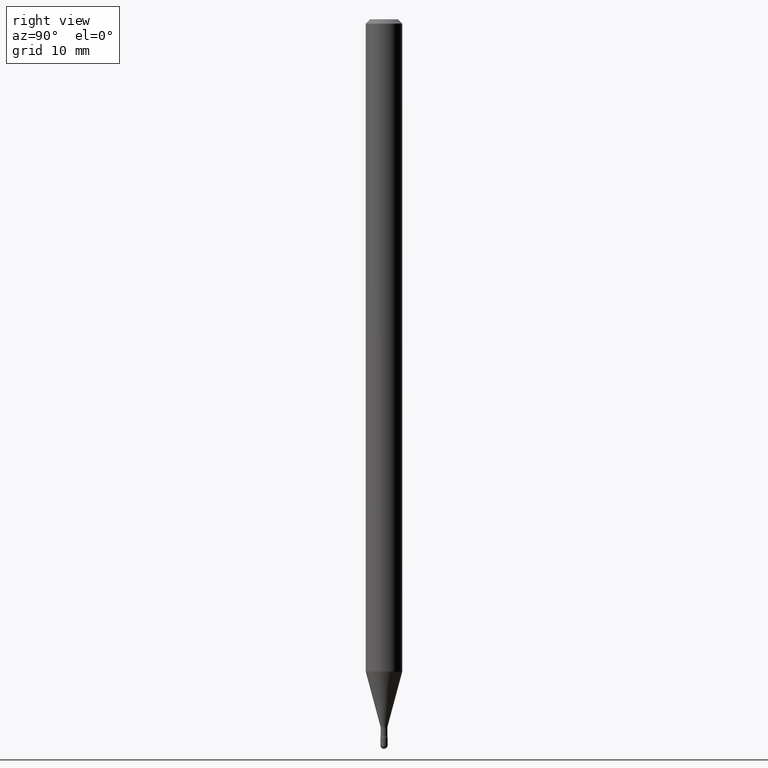
[diagram: clean part render]
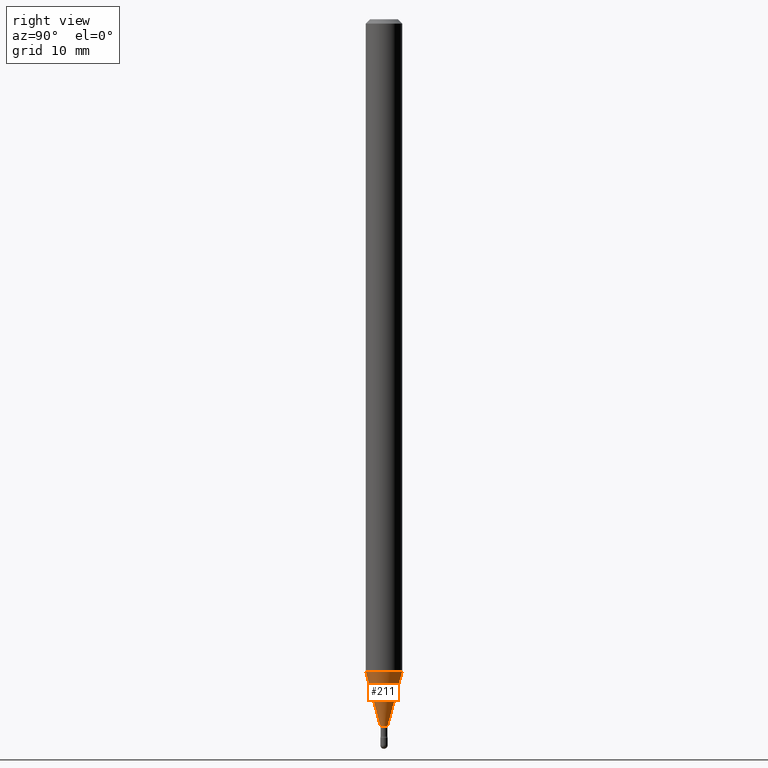
[diagram: same view with one face highlighted and labeled with its STEP entity id]
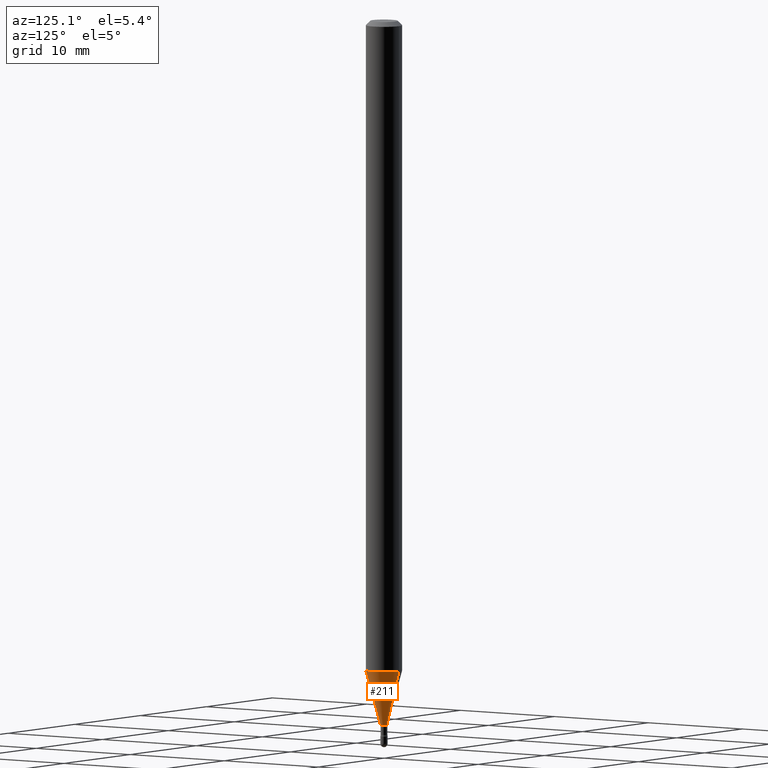
[diagram: same view with one face highlighted and labeled with its STEP entity id]
A machine part, right view. The second image highlights one B-rep face of the part: STEP entity #211.
A second angle (auxiliary view) of the same face is appended — the face is thin or edge-on in the first view.
In plain terms, the highlighted conical surface has half-angle 15 deg.
Its self-contained STEP definition (entity closure, byte-faithful):
#16 = DIRECTION ( 'NONE',  ( -6.982962677686265922E-15, -1.000000000000000000, 0.000000000000000000 ) ) ;
#49 = CARTESIAN_POINT ( 'NONE',  ( 5.925679049565077120E-29, -8.460064935395648015E-15, -2.423092501787273090 ) ) ;
#61 = CIRCLE ( 'NONE', #273, 0.01226111260566397493 ) ;
#78 = CARTESIAN_POINT ( 'NONE',  ( -4.364351673553369422E-16, -0.06250000000000779932, -2.235598421515879952 ) ) ;
#113 = VERTEX_POINT ( 'NONE', #230 ) ;
#116 = LINE ( 'NONE', #330, #444 ) ;
#143 = VECTOR ( 'NONE', #229, 39.37007874015748143 ) ;
#158 = ORIENTED_EDGE ( 'NONE', *, *, #515, .F. ) ;
#159 = CARTESIAN_POINT ( 'NONE',  ( -8.561889171220087802E-17, -0.01226111260567243517, -2.423092501787273090 ) ) ;
#168 = AXIS2_PLACEMENT_3D ( 'NONE', #297, #420, #425 ) ;
#186 = DIRECTION ( 'NONE',  ( -6.982962677686265922E-15, -1.000000000000000000, 0.000000000000000000 ) ) ;
#201 = ORIENTED_EDGE ( 'NONE', *, *, #254, .T. ) ;
#211 = ADVANCED_FACE ( 'NONE', ( #488 ), #530, .T. ) ;
#222 = CARTESIAN_POINT ( 'NONE',  ( 4.440892098501170476E-16, 0.06249999999999218681, -2.235598421515880396 ) ) ;
#229 = DIRECTION ( 'NONE',  ( -1.807323732225330534E-15, -0.2588190451025182415, 0.9659258262890689783 ) ) ;
#230 = CARTESIAN_POINT ( 'NONE',  ( 2.656048273965440333E-16, 0.01226111260565551642, -2.423092501787273090 ) ) ;
#253 = VERTEX_POINT ( 'NONE', #159 ) ;
#254 = EDGE_CURVE ( 'NONE', #113, #465, #116, .T. ) ;
#272 = DIRECTION ( 'NONE',  ( -2.445502615023692233E-29, 3.491432922662054397E-15, 1.000000000000000000 ) ) ;
#273 = AXIS2_PLACEMENT_3D ( 'NONE', #448, #498, #16 ) ;
#284 = ORIENTED_EDGE ( 'NONE', *, *, #405, .T. ) ;
#297 = CARTESIAN_POINT ( 'NONE',  ( 5.467161785959923707E-29, -7.805441930731864648E-15, -2.235598421515879952 ) ) ;
#327 = VERTEX_POINT ( 'NONE', #78 ) ;
#329 = CIRCLE ( 'NONE', #168, 0.06250000000000000000 ) ;
#330 = CARTESIAN_POINT ( 'NONE',  ( 8.712044494297056292E-17, 0.01226111260565551468, -2.423092501787273090 ) ) ;
#332 = AXIS2_PLACEMENT_3D ( 'NONE', #49, #272, #186 ) ;
#354 = EDGE_LOOP ( 'NONE', ( #284, #201, #560, #158 ) ) ;
#377 = CARTESIAN_POINT ( 'NONE',  ( -8.561889171220087802E-17, -0.01226111260567243517, -2.423092501787273090 ) ) ;
#388 = LINE ( 'NONE', #377, #143 ) ;
#405 = EDGE_CURVE ( 'NONE', #253, #113, #61, .T. ) ;
#420 = DIRECTION ( 'NONE',  ( -2.445502615023692233E-29, 3.491432922662054397E-15, 1.000000000000000000 ) ) ;
#425 = DIRECTION ( 'NONE',  ( -6.982962677686265922E-15, -1.000000000000000000, 4.370956789862821150E-15 ) ) ;
#435 = EDGE_CURVE ( 'NONE', #327, #465, #329, .T. ) ;
#444 = VECTOR ( 'NONE', #544, 39.37007874015748143 ) ;
#448 = CARTESIAN_POINT ( 'NONE',  ( 5.925679049565077120E-29, -8.460064935395648015E-15, -2.423092501787273090 ) ) ;
#465 = VERTEX_POINT ( 'NONE', #222 ) ;
#488 = FACE_OUTER_BOUND ( 'NONE', #354, .T. ) ;
#498 = DIRECTION ( 'NONE',  ( -2.445502615023692233E-29, 3.491432922662054397E-15, 1.000000000000000000 ) ) ;
#515 = EDGE_CURVE ( 'NONE', #253, #327, #388, .T. ) ;
#530 = CONICAL_SURFACE ( 'NONE', #332, 0.01226111260566397493, 0.2617993877991502960 ) ;
#544 = DIRECTION ( 'NONE',  ( 1.839019923739600710E-15, 0.2588190451025250138, 0.9659258262890670910 ) ) ;
#560 = ORIENTED_EDGE ( 'NONE', *, *, #435, .F. ) ;